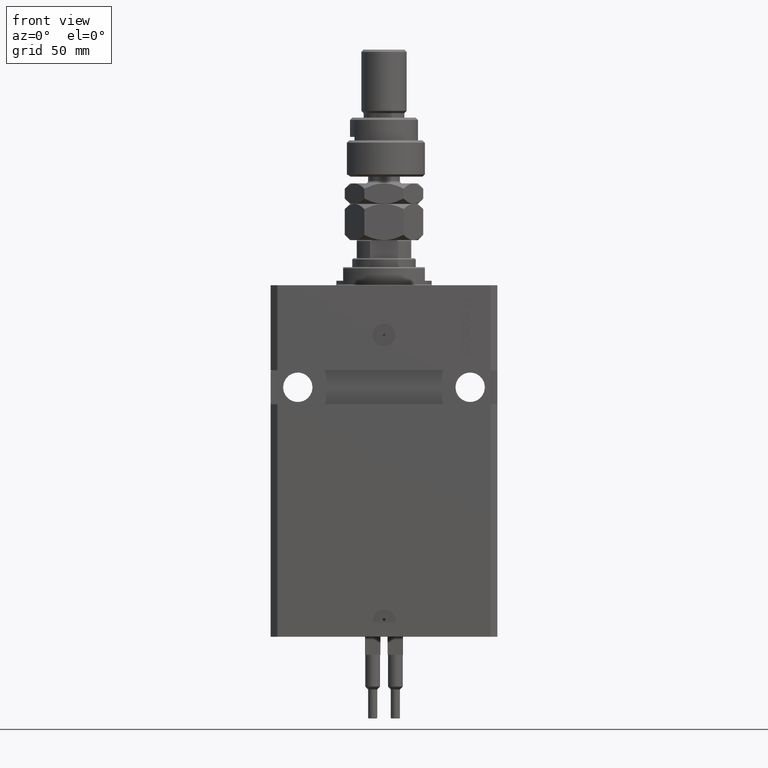
[diagram: clean part render]
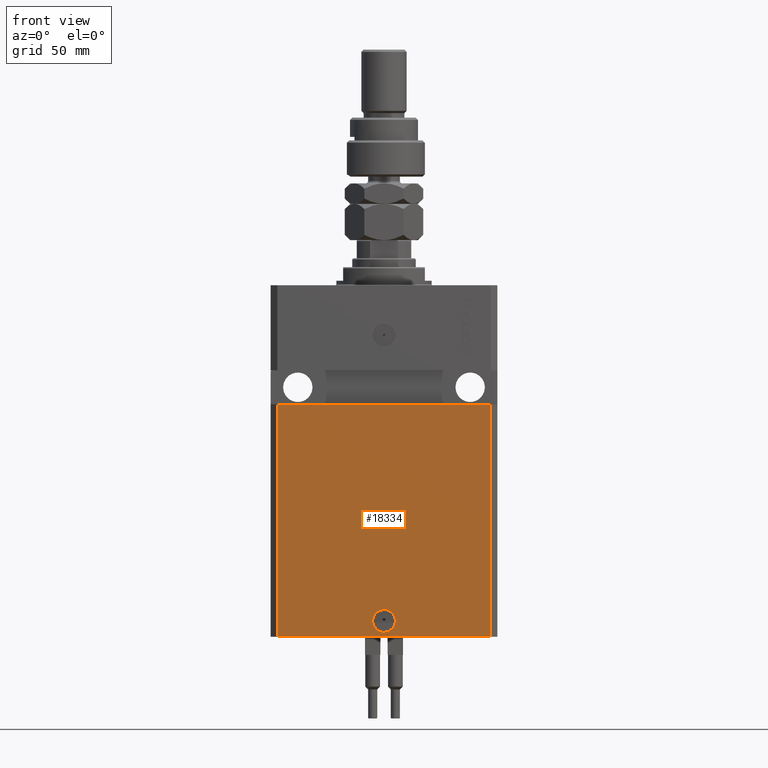
[diagram: same view with one face highlighted and labeled with its STEP entity id]
A machine part, front view. The second image highlights one B-rep face of the part: STEP entity #18334.
In plain terms, the highlighted planar face has unit normal (-0, -1, 0).
Its self-contained STEP definition (entity closure, byte-faithful):
#540 = ORIENTED_EDGE ( 'NONE', *, *, #40641, .F. ) ;
#818 = EDGE_CURVE ( 'NONE', #18019, #38142, #2683, .T. ) ;
#2653 = LINE ( 'NONE', #48187, #38990 ) ;
#2683 = CIRCLE ( 'NONE', #21093, 5.000000000000006217 ) ;
#2929 = FACE_BOUND ( 'NONE', #21044, .T. ) ;
#3594 = CARTESIAN_POINT ( 'NONE',  ( 47.00000000000000000, -37.49999999999999289, -52.49999999999998579 ) ) ;
#4102 = DIRECTION ( 'NONE',  ( 1.000000000000000000, -1.476360405086644309E-16, 0.000000000000000000 ) ) ;
#4883 = VECTOR ( 'NONE', #4102, 1000.000000000000000 ) ;
#7336 = ORIENTED_EDGE ( 'NONE', *, *, #16483, .T. ) ;
#10430 = DIRECTION ( 'NONE',  ( 1.000000000000000000, 0.000000000000000000, 0.000000000000000000 ) ) ;
#11196 = EDGE_CURVE ( 'NONE', #43303, #28172, #2653, .T. ) ;
#11962 = CARTESIAN_POINT ( 'NONE',  ( -46.99999999999998579, -37.50000000000000711, -52.50000000000000000 ) ) ;
#12124 = CARTESIAN_POINT ( 'NONE',  ( -47.00000000000000000, -37.49999999999999289, -155.0000000000000000 ) ) ;
#13266 = DIRECTION ( 'NONE',  ( 1.000000000000000000, 1.387778780781445182E-16, 1.387778780781445182E-16 ) ) ;
#15554 = LINE ( 'NONE', #12124, #42136 ) ;
#16228 = CARTESIAN_POINT ( 'NONE',  ( -50.00000000000002842, -37.50000000000000711, -52.50000000000000000 ) ) ;
#16483 = EDGE_CURVE ( 'NONE', #17352, #43303, #20615, .T. ) ;
#17352 = VERTEX_POINT ( 'NONE', #45568 ) ;
#17714 = EDGE_CURVE ( 'NONE', #38142, #18019, #29197, .T. ) ;
#18019 = VERTEX_POINT ( 'NONE', #44920 ) ;
#18334 = ADVANCED_FACE ( 'NONE', ( #2929, #46195 ), #30719, .T. ) ;
#19178 = AXIS2_PLACEMENT_3D ( 'NONE', #46452, #50394, #40072 ) ;
#20615 = LINE ( 'NONE', #36600, #4883 ) ;
#21044 = EDGE_LOOP ( 'NONE', ( #45071, #41310 ) ) ;
#21093 = AXIS2_PLACEMENT_3D ( 'NONE', #50033, #33770, #10430 ) ;
#23835 = LINE ( 'NONE', #16228, #40273 ) ;
#27041 = CARTESIAN_POINT ( 'NONE',  ( 47.00000000000000000, -37.50000000000000711, -155.0000000000000000 ) ) ;
#28172 = VERTEX_POINT ( 'NONE', #3594 ) ;
#28259 = DIRECTION ( 'NONE',  ( 0.000000000000000000, 0.000000000000000000, 1.000000000000000000 ) ) ;
#29197 = CIRCLE ( 'NONE', #33385, 5.000000000000006217 ) ;
#30719 = PLANE ( 'NONE',  #19178 ) ;
#31526 = DIRECTION ( 'NONE',  ( 0.000000000000000000, 0.000000000000000000, 1.000000000000000000 ) ) ;
#33189 = CARTESIAN_POINT ( 'NONE',  ( -5.536351519074916863E-15, -37.50000000000000000, -148.0000000000000000 ) ) ;
#33385 = AXIS2_PLACEMENT_3D ( 'NONE', #33189, #49196, #33709 ) ;
#33430 = VERTEX_POINT ( 'NONE', #11962 ) ;
#33709 = DIRECTION ( 'NONE',  ( 1.000000000000000000, 0.000000000000000000, 0.000000000000000000 ) ) ;
#33770 = DIRECTION ( 'NONE',  ( 1.176083712526788232E-16, -1.000000000000000000, 0.000000000000000000 ) ) ;
#36600 = CARTESIAN_POINT ( 'NONE',  ( -47.00000000000000000, -37.49999999999999289, -155.0000000000000000 ) ) ;
#37857 = ORIENTED_EDGE ( 'NONE', *, *, #46119, .F. ) ;
#38142 = VERTEX_POINT ( 'NONE', #40891 ) ;
#38990 = VECTOR ( 'NONE', #28259, 1000.000000000000000 ) ;
#40072 = DIRECTION ( 'NONE',  ( 1.000000000000000000, -1.476360405086644309E-16, 0.000000000000000000 ) ) ;
#40273 = VECTOR ( 'NONE', #13266, 1000.000000000000000 ) ;
#40641 = EDGE_CURVE ( 'NONE', #33430, #28172, #23835, .T. ) ;
#40891 = CARTESIAN_POINT ( 'NONE',  ( -5.000000000000011546, -37.50000000000000000, -148.0000000000000000 ) ) ;
#41172 = EDGE_LOOP ( 'NONE', ( #540, #37857, #7336, #46338 ) ) ;
#41310 = ORIENTED_EDGE ( 'NONE', *, *, #17714, .F. ) ;
#42136 = VECTOR ( 'NONE', #31526, 1000.000000000000000 ) ;
#43303 = VERTEX_POINT ( 'NONE', #27041 ) ;
#44920 = CARTESIAN_POINT ( 'NONE',  ( 5.000000000000000888, -37.50000000000000000, -148.0000000000000000 ) ) ;
#45071 = ORIENTED_EDGE ( 'NONE', *, *, #818, .F. ) ;
#45568 = CARTESIAN_POINT ( 'NONE',  ( -47.00000000000000000, -37.49999999999999289, -155.0000000000000000 ) ) ;
#46119 = EDGE_CURVE ( 'NONE', #17352, #33430, #15554, .T. ) ;
#46195 = FACE_OUTER_BOUND ( 'NONE', #41172, .T. ) ;
#46338 = ORIENTED_EDGE ( 'NONE', *, *, #11196, .T. ) ;
#46452 = CARTESIAN_POINT ( 'NONE',  ( -47.00000000000000000, -37.49999999999999289, -155.0000000000000000 ) ) ;
#48187 = CARTESIAN_POINT ( 'NONE',  ( 47.00000000000000000, -37.50000000000000711, -155.0000000000000000 ) ) ;
#49196 = DIRECTION ( 'NONE',  ( 1.176083712526788232E-16, -1.000000000000000000, 0.000000000000000000 ) ) ;
#50033 = CARTESIAN_POINT ( 'NONE',  ( -5.536351519074916863E-15, -37.50000000000000000, -148.0000000000000000 ) ) ;
#50394 = DIRECTION ( 'NONE',  ( -1.476360405086644309E-16, -1.000000000000000000, 0.000000000000000000 ) ) ;